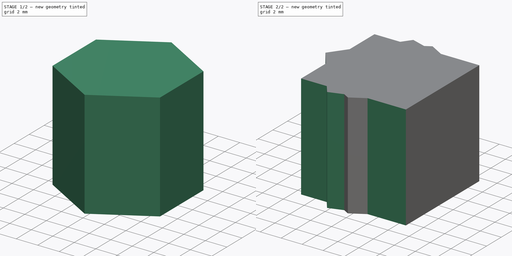
[diagram: build sequence overview — one tinted view per stage of 2, left to right]
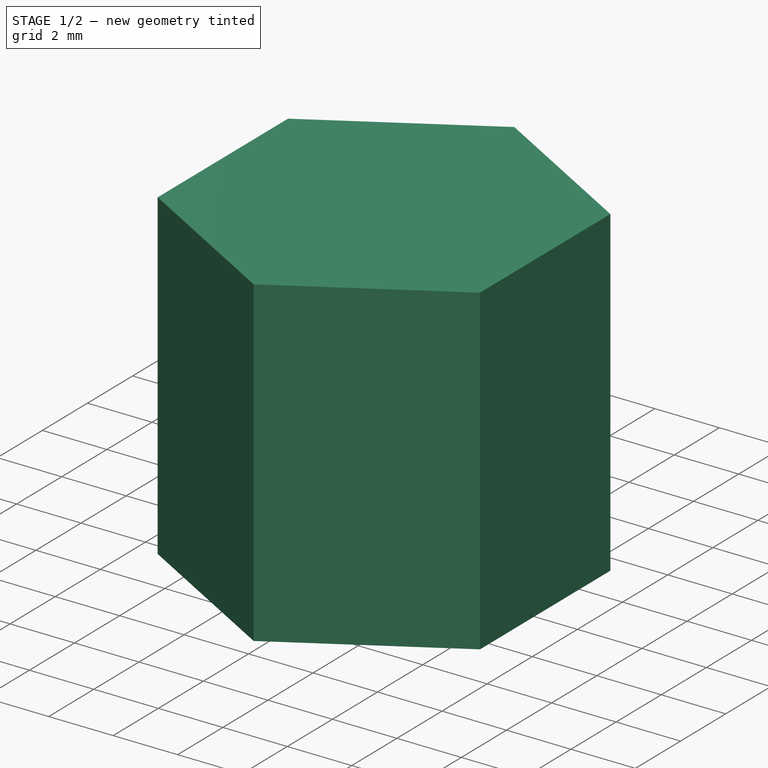
[diagram: stage 1 of 2 — iso view after this stage's code; geometry added in this stage tinted green]
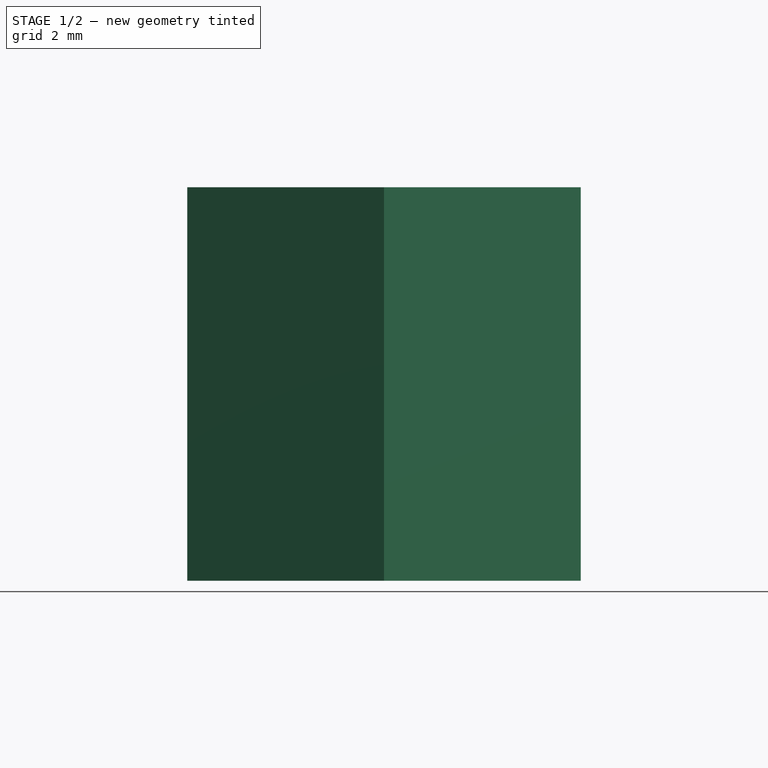
[diagram: stage 1 of 2 — front view after this stage's code; geometry added in this stage tinted green]
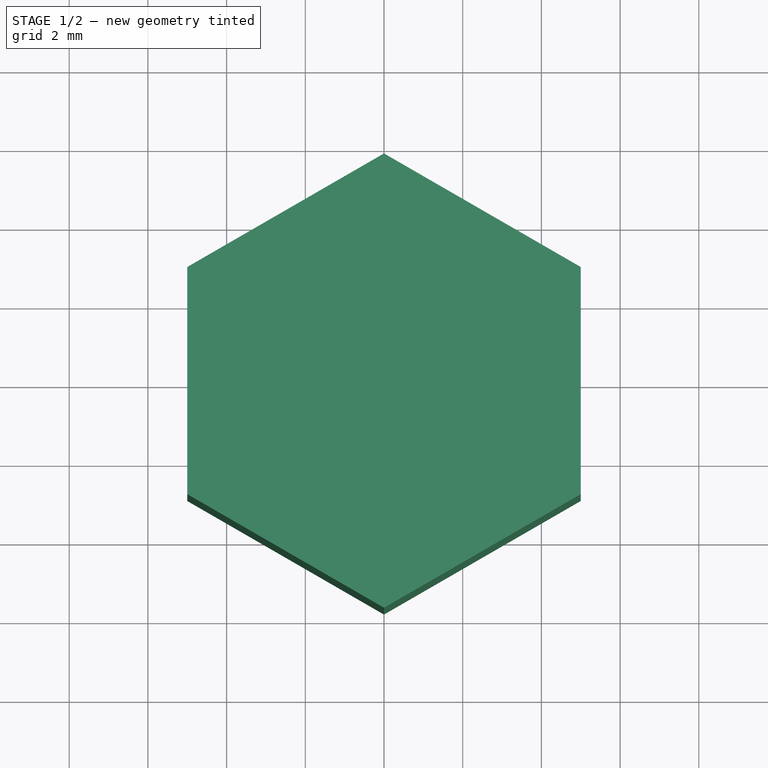
[diagram: stage 1 of 2 — top view after this stage's code; geometry added in this stage tinted green]
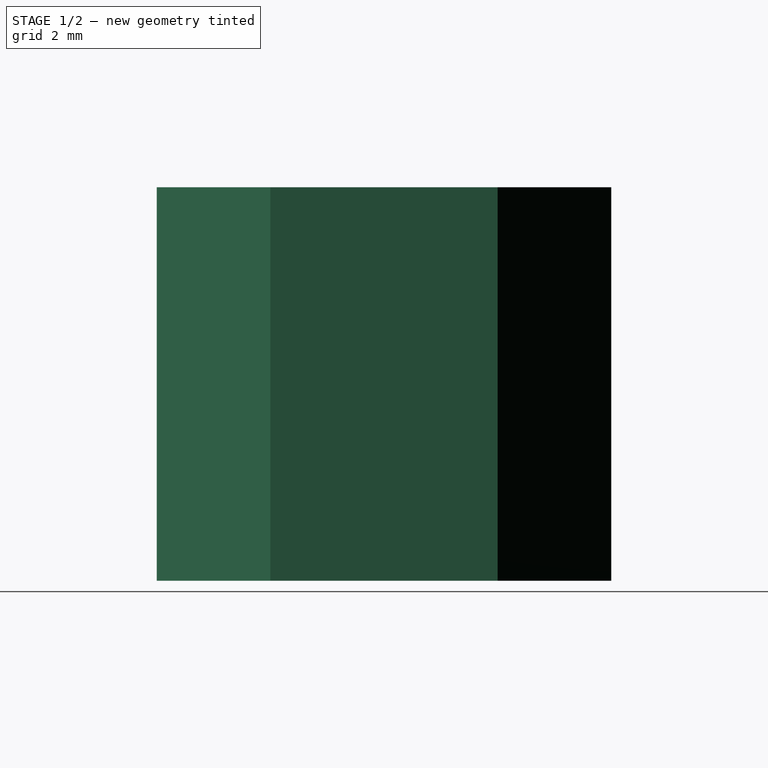
[diagram: stage 1 of 2 — right view after this stage's code; geometry added in this stage tinted green]
FCSTD DOCUMENT  (FreeCAD 0.19R17089 +1543 (Git))
Label: xchg-components-c
License: All rights reserved
LicenseURL: http://en.wikipedia.org/wiki/All_rights_reserved
objects: Part::FeaturePython×21, App::FeaturePython×15, Sketcher::SketchObject×4, PartDesign::Pad×4, PartDesign::Body×4, App::Link×3, App::DocumentObjectGroup×2
note: 34 computed .brp shape members not serialized (recipe doc carries the construction recipe); baked Part::Feature solids carry a one-line shape summary decoded from their .brp

FEATURE [App::DocumentObjectGroup] Group001  label="Project Components"
FEATURE [Sketcher::SketchObject] Sketch
  MapMode = 5
  Support = -> [XY_Plane]
  sketch-geometry (1):
    g0: Circle CenterX=0 CenterY=0 CenterZ=0 NormalX=0 NormalY=0 NormalZ=1 AngleXU=0 Radius=2.5
  constraints (2):
    c: Coincident(g0,g-1)
    c: Diameter(g0) = 5
FEATURE [PartDesign::Pad] Pad
  ClaimChildren = false
  Length = 10
  Length2 = 100
  Profile = -> Sketch
  Type = 0
FEATURE [PartDesign::Body] Body002  label="Pentagon 000"
  Group = -> [Sketch002,Pad002]
  Origin = -> Origin002
  Tip = -> Pad002
FEATURE [App::Link] Link001  label="Cylinder 002"
  LinkPlacement = pos=(-0.59017,0,10) rot=(0,0,1;0rad)
  LinkedObject = -> Body
  Placement = pos=(-0.59017,0,10) rot=(0,0,1;0rad)
FEATURE [Part::FeaturePython] Parts001  # WARN: FeaturePython — macro-defined, semantics opaque (R4)
  Group = -> [Link001,Body002]
  GroupMode = 0
FEATURE [Sketcher::SketchObject] Sketch003
  MapMode = 5
  Support = -> [XY_Plane003]
  sketch-geometry (7):
    g0: LineSegment StartX=0 StartY=5.7735 StartZ=0 EndX=-5 EndY=2.88675 EndZ=0
    g1: LineSegment StartX=-5 StartY=2.88675 StartZ=0 EndX=-5 EndY=-2.88675 EndZ=0
    g2: LineSegment StartX=-5 StartY=-2.88675 StartZ=0 EndX=0 EndY=-5.7735 EndZ=0
    g3: LineSegment StartX=0 StartY=-5.7735 StartZ=0 EndX=5 EndY=-2.88675 EndZ=0
    g4: LineSegment StartX=5 StartY=-2.88675 StartZ=0 EndX=5 EndY=2.88675 EndZ=0
    g5: LineSegment StartX=5 StartY=2.88675 StartZ=0 EndX=0 EndY=5.7735 EndZ=0
    g6: Circle [constr] CenterX=0 CenterY=0 CenterZ=0 NormalX=0 NormalY=0 NormalZ=1 AngleXU=0 Radius=5.7735
  constraints (16):
    c: Coincident(g0,g1)
    c: Coincident(g1,g2)
    c: Coincident(g2,g3)
    c: Coincident(g3,g4)
    c: Coincident(g4,g5)
    c: Coincident(g5,g0)
    c: Equal(g0, g1-g5) x5
    c: PointOnObject(g0,g6)
    c: PointOnObject(g1,g6)
    c: PointOnObject(g2,g6)
    c: PointOnObject(g3,g6)
    c: PointOnObject(g4,g6)
    c: PointOnObject(g5,g6)
    c: Coincident(g6,g-1)
    c: PointOnObject(g5,g-2)
    c: Distance(g1,g3) = 10
FEATURE [PartDesign::Pad] Pad003
  ClaimChildren = false
  Length = 10
  Length2 = 100
  Profile = -> Sketch003
  Type = 0
FEATURE [PartDesign::Body] Body003  label="Hexagon 000"
  Group = -> [Sketch003,Pad003]
  Origin = -> Origin003
  Tip = -> Pad003
FEATURE [App::Link] Link002  label="Cylinder 003"
  LinkPlacement = pos=(0,0,10) rot=(0,0,1;0rad)
  LinkedObject = -> Body
  Placement = pos=(0,0,10) rot=(0,0,1;0rad)
FEATURE [Part::FeaturePython] Parts002  # WARN: FeaturePython — macro-defined, semantics opaque (R4)
  Group = -> [Body003,Link002]
  GroupMode = 0
FEATURE [App::DocumentObjectGroup] Group  label="Component Definitions"
  Group = -> [Body,Assembly,Assembly001,Assembly002]
FEATURE [Part::FeaturePython] Assembly  label="Component A"  # WARN: FeaturePython — macro-defined, semantics opaque (R4)
  AutoRelax = true
  BuildShape = 0
  Freeze = false
  Group = -> [Constraints,Elements,Parts]
  GroupMode = 1
  SolverType = 1
  Verbose = false
  _SolverType = 1
  _Version = 1
FEATURE [App::FeaturePython] Constraints  # WARN: FeaturePython — macro-defined, semantics opaque (R4)
  Group = -> [Constraint]
  GroupMode = 1
  _Version = 1
FEATURE [App::FeaturePython] Elements  label="Connectors 000"  # WARN: FeaturePython — macro-defined, semantics opaque (R4)
  Group = -> [Element,Element001,Element002,Element003,Element004]
  GroupMode = 1
FEATURE [Part::FeaturePython] Element  label="Cylinder Top"  # link proxy (typed FeaturePython)
  Detach = false
  LinkTransform = true
  LinkedObject = -> Link [Pad.Edge3]
  _Parent = -> Elements
FEATURE [Part::FeaturePython] Element001  label="Cylinder Bottom"  # link proxy (typed FeaturePython)
  Detach = false
  LinkTransform = true
  LinkedObject = -> Link [Pad.Edge2]
  _Parent = -> Elements
FEATURE [Part::FeaturePython] Element002  label="Cube Top"  # link proxy (typed FeaturePython)
  Detach = false
  LinkTransform = true
  LinkedObject = -> Body001 [Pad001.Face6]
  _Parent = -> Elements
FEATURE [Part::FeaturePython] Element003  label="Right"  # link proxy (typed FeaturePython)
  Detach = false
  LinkTransform = true
  LinkedObject = -> Body001 [Pad001.Face4]
  _Parent = -> Elements
FEATURE [Part::FeaturePython] Element004  label="Bottom"  # link proxy (typed FeaturePython)
  Detach = false
  LinkTransform = true
  LinkedObject = -> Body001 [Pad001.Face5]
  _Parent = -> Elements
FEATURE [App::FeaturePython] Constraint  label="PlaneCoincident"  # WARN: FeaturePython — macro-defined, semantics opaque (R4)
  Angle = 0
  AnglePitch = 0
  AngleRoll = 0
  Cascade = false
  ConstraintType = 2
  Disabled = false
  Group = -> [ElementLink,ElementLink001]
  GroupMode = 1
  LockAngle = false
  Multiply = false
  OffsetX = 0
  OffsetY = 0
  _ConstraintType = 35
  _Parent = -> Constraints
FEATURE [App::FeaturePython] ElementLink  label="Cylinder Bottom"  # link proxy (typed FeaturePython)
  LinkTransform = true
  LinkedObject = -> Element001
  _Parent = -> Constraint
FEATURE [App::FeaturePython] ElementLink001  label="Cube Top"  # link proxy (typed FeaturePython)
  LinkTransform = true
  LinkedObject = -> Element002
  _Parent = -> Constraint
FEATURE [Part::FeaturePython] Assembly001  label="Component B"  # WARN: FeaturePython — macro-defined, semantics opaque (R4)
  AutoRelax = true
  BuildShape = 0
  Freeze = false
  Group = -> [Constraints001,Elements001,Parts001]
  GroupMode = 1
  SolverType = 1
  Verbose = false
  _SolverType = 1
  _Version = 1
FEATURE [App::FeaturePython] Constraints001  # WARN: FeaturePython — macro-defined, semantics opaque (R4)
  Group = -> [Constraint001]
  GroupMode = 1
  _Version = 1
FEATURE [App::FeaturePython] Elements001  label="Connectors 001"  # WARN: FeaturePython — macro-defined, semantics opaque (R4)
  Group = -> [Element005,Element006,Element007,Element008,Element009]
  GroupMode = 1
FEATURE [Part::FeaturePython] Element005  label="Cylinder Top"  # link proxy (typed FeaturePython)
  Detach = false
  LinkTransform = true
  LinkedObject = -> Link001 [Pad.Edge3]
  _Parent = -> Elements001
FEATURE [Part::FeaturePython] Element006  label="Cylinder Bottom"  # link proxy (typed FeaturePython)
  Detach = false
  LinkTransform = true
  LinkedObject = -> Link001 [Pad.Edge2]
  _Parent = -> Elements001
FEATURE [Part::FeaturePython] Element007  label="Pentagon Top"  # link proxy (typed FeaturePython)
  Detach = false
  LinkTransform = true
  LinkedObject = -> Body002 [Pad002.Face7]
  _Parent = -> Elements001
FEATURE [Part::FeaturePython] Element008  label="Right"  # link proxy (typed FeaturePython)
  Detach = false
  LinkTransform = true
  LinkedObject = -> Body002 [Pad002.Face3]
  _Parent = -> Elements001
FEATURE [Part::FeaturePython] Element009  label="Bottom"  # link proxy (typed FeaturePython)
  Detach = false
  LinkTransform = true
  LinkedObject = -> Body002 [Pad002.Face6]
  _Parent = -> Elements001
FEATURE [App::FeaturePython] Constraint001  label="PlaneCoincident001"  # WARN: FeaturePython — macro-defined, semantics opaque (R4)
  Angle = 0
  AnglePitch = 0
  AngleRoll = 0
  Cascade = false
  ConstraintType = 2
  Disabled = false
  Group = -> [ElementLink002,ElementLink003]
  GroupMode = 1
  LockAngle = false
  Multiply = false
  OffsetX = 0
  OffsetY = 0
  _ConstraintType = 35
  _Parent = -> Constraints001
FEATURE [App::FeaturePython] ElementLink002  label="Pentagon Top"  # link proxy (typed FeaturePython)
  LinkTransform = true
  LinkedObject = -> Element007
  _Parent = -> Constraint001
FEATURE [App::FeaturePython] ElementLink003  label="Cylinder Bottom"  # link proxy (typed FeaturePython)
  LinkTransform = true
  LinkedObject = -> Element006
  _Parent = -> Constraint001
FEATURE [Part::FeaturePython] Assembly002  label="Component C"  # WARN: FeaturePython — macro-defined, semantics opaque (R4)
  AutoRelax = true
  BuildShape = 0
  Freeze = false
  Group = -> [Constraints002,Elements002,Parts002]
  GroupMode = 1
  SolverType = 1
  Verbose = false
  _SolverType = 1
  _Version = 1
FEATURE [App::FeaturePython] Constraints002  # WARN: FeaturePython — macro-defined, semantics opaque (R4)
  Group = -> [Constraint002]
  GroupMode = 1
  _Version = 1
FEATURE [App::FeaturePython] Elements002  label="Connectors 002"  # WARN: FeaturePython — macro-defined, semantics opaque (R4)
  Group = -> [Element010,Element011,Element012,Element013,Element014]
  GroupMode = 1
FEATURE [Part::FeaturePython] Element010  label="Cylinder Top"  # link proxy (typed FeaturePython)
  Detach = false
  LinkTransform = true
  LinkedObject = -> Link002 [Pad.Edge3]
  _Parent = -> Elements002
FEATURE [Part::FeaturePython] Element011  label="Cylinder Bottom"  # link proxy (typed FeaturePython)
  Detach = false
  LinkTransform = true
  LinkedObject = -> Link002 [Pad.Edge2]
  _Parent = -> Elements002
FEATURE [Part::FeaturePython] Element012  label="Hexagon Top"  # link proxy (typed FeaturePython)
  Detach = false
  LinkTransform = true
  LinkedObject = -> Body003 [Pad003.Face8]
  _Parent = -> Elements002
FEATURE [Part::FeaturePython] Element013  label="Right"  # link proxy (typed FeaturePython)
  Detach = false
  LinkTransform = true
  LinkedObject = -> Body003 [Pad003.Face5]
  _Parent = -> Elements002
FEATURE [Part::FeaturePython] Element014  label="Bottom"  # link proxy (typed FeaturePython)
  Detach = false
  LinkTransform = true
  LinkedObject = -> Body003 [Pad003.Face7]
  _Parent = -> Elements002
FEATURE [App::FeaturePython] Constraint002  label="PlaneCoincident002"  # WARN: FeaturePython — macro-defined, semantics opaque (R4)
  Angle = 0
  AnglePitch = 0
  AngleRoll = 0
  Cascade = false
  ConstraintType = 2
  Disabled = false
  Group = -> [ElementLink004,ElementLink005]
  GroupMode = 1
  LockAngle = false
  Multiply = false
  OffsetX = 0
  OffsetY = 0
  _ConstraintType = 35
  _Parent = -> Constraints002
FEATURE [App::FeaturePython] ElementLink004  label="Hexagon Top"  # link proxy (typed FeaturePython)
  LinkTransform = true
  LinkedObject = -> Element012
  _Parent = -> Constraint002
FEATURE [App::FeaturePython] ElementLink005  label="Cylinder Bottom"  # link proxy (typed FeaturePython)
  LinkTransform = true
  LinkedObject = -> Element011
  _Parent = -> Constraint002
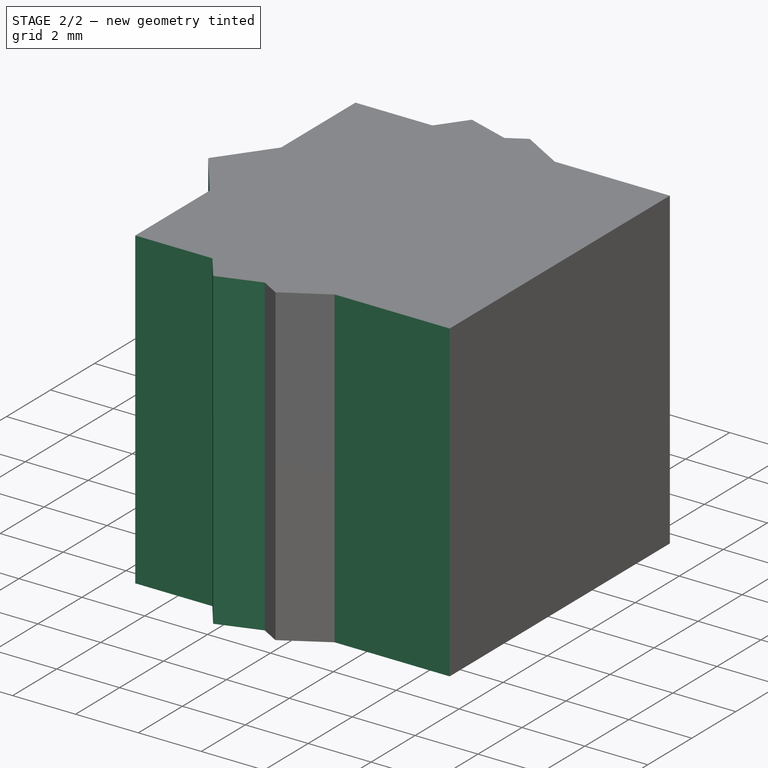
[diagram: stage 2 of 2 — iso view after this stage's code; geometry added in this stage tinted green]
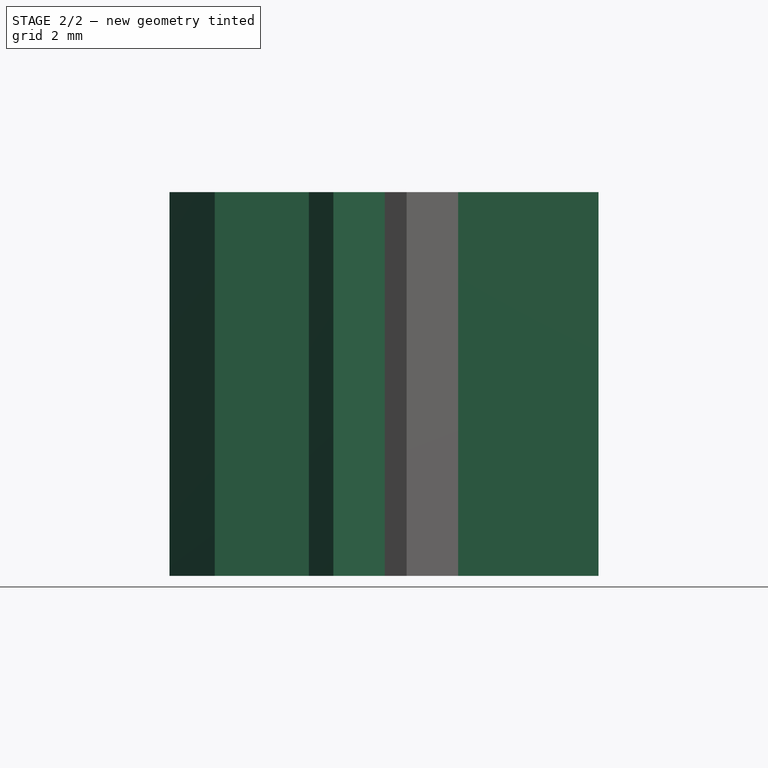
[diagram: stage 2 of 2 — front view after this stage's code; geometry added in this stage tinted green]
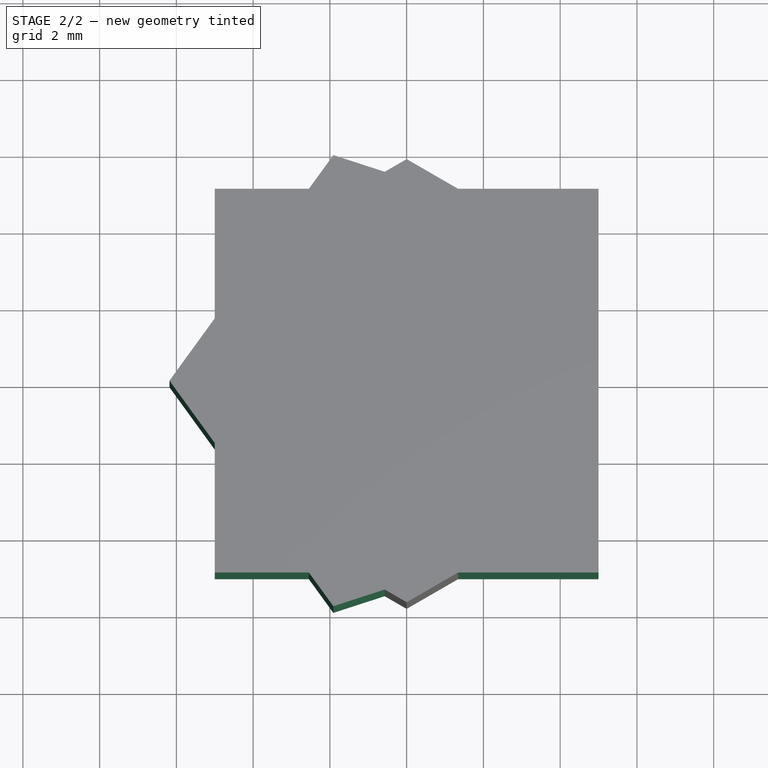
[diagram: stage 2 of 2 — top view after this stage's code; geometry added in this stage tinted green]
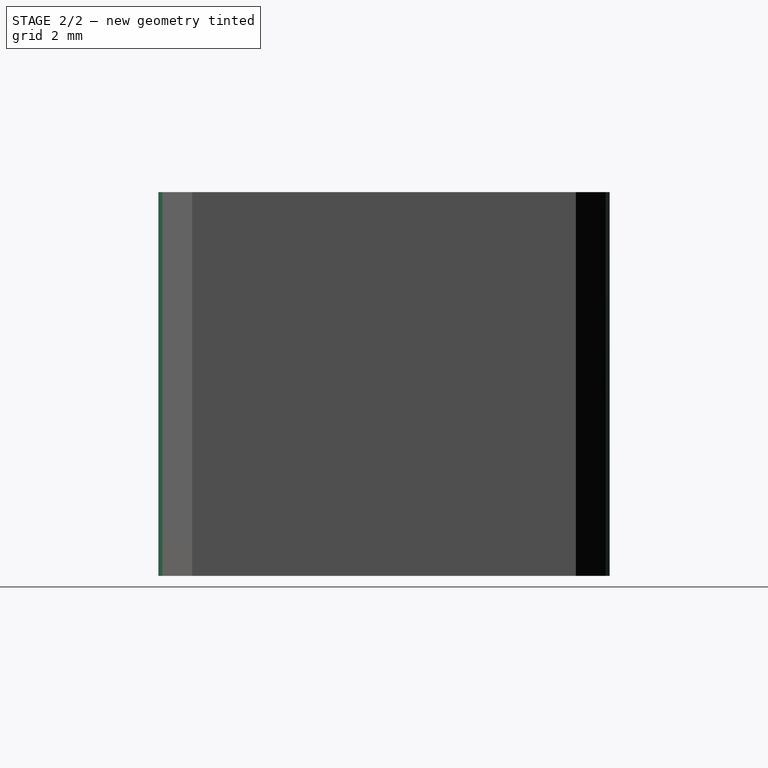
[diagram: stage 2 of 2 — right view after this stage's code; geometry added in this stage tinted green]
FEATURE [PartDesign::Body] Body  label="Cylinder 000"
  Group = -> [Sketch,Pad]
  Origin = -> Origin
  Tip = -> Pad
FEATURE [Sketcher::SketchObject] Sketch001
  MapMode = 5
  Support = -> [XY_Plane001]
  sketch-geometry (5):
    g0: LineSegment StartX=5 StartY=5 StartZ=0 EndX=-5 EndY=5 EndZ=0
    g1: LineSegment StartX=-5 StartY=5 StartZ=0 EndX=-5 EndY=-5 EndZ=0
    g2: LineSegment StartX=-5 StartY=-5 StartZ=0 EndX=5 EndY=-5 EndZ=0
    g3: LineSegment StartX=5 StartY=-5 StartZ=0 EndX=5 EndY=5 EndZ=0
    g4: Circle [constr] CenterX=0 CenterY=0 CenterZ=0 NormalX=0 NormalY=0 NormalZ=1 AngleXU=0 Radius=7.07107
  constraints (14):
    c: Coincident(g0,g1)
    c: Coincident(g1,g2)
    c: Coincident(g2,g3)
    c: Coincident(g3,g0)
    c: Equal(g0,g1)
    c: Equal(g0,g2)
    c: Equal(g0,g3)
    c: PointOnObject(g0,g4)
    c: PointOnObject(g1,g4)
    c: PointOnObject(g2,g4)
    c: PointOnObject(g3,g4)
    c: Coincident(g4,g-1)
    c: Horizontal(g0)
    c: Distance(g2) = 10
FEATURE [PartDesign::Pad] Pad001
  ClaimChildren = false
  Length = 10
  Length2 = 100
  Profile = -> Sketch001
  Type = 0
FEATURE [PartDesign::Body] Body001  label="Cube 000"
  Group = -> [Sketch001,Pad001]
  Origin = -> Origin001
  Placement = pos=(0,0,-10) rot=(0,0,1;0rad)
  Tip = -> Pad001
FEATURE [App::Link] Link  label="Cylinder 001"
  LinkedObject = -> Body
FEATURE [Part::FeaturePython] Parts  # WARN: FeaturePython — macro-defined, semantics opaque (R4)
  Group = -> [Body001,Link]
  GroupMode = 0
FEATURE [Sketcher::SketchObject] Sketch002
  MapMode = 5
  Support = -> [XY_Plane002]
  sketch-geometry (6):
    g0: LineSegment StartX=-6.18034 StartY=0 StartZ=0 EndX=-1.90983 EndY=-5.87785 EndZ=0
    g1: LineSegment StartX=-1.90983 StartY=-5.87785 StartZ=0 EndX=5 EndY=-3.63271 EndZ=0
    g2: LineSegment StartX=5 StartY=-3.63271 StartZ=0 EndX=5 EndY=3.63271 EndZ=0
    g3: LineSegment StartX=5 StartY=3.63271 StartZ=0 EndX=-1.90983 EndY=5.87785 EndZ=0
    g4: LineSegment StartX=-1.90983 StartY=5.87785 StartZ=0 EndX=-6.18034 EndY=0 EndZ=0
    g5: Circle [constr] CenterX=0 CenterY=0 CenterZ=0 NormalX=0 NormalY=0 NormalZ=1 AngleXU=0 Radius=6.18034
  constraints (14):
    c: Coincident(g0,g1)
    c: Coincident(g1,g2)
    c: Coincident(g2,g3)
    c: Coincident(g3,g4)
    c: Coincident(g4,g0)
    c: Equal(g0, g1-g4) x4
    c: PointOnObject(g0,g5)
    c: PointOnObject(g1,g5)
    c: PointOnObject(g2,g5)
    c: PointOnObject(g3,g5)
    c: PointOnObject(g4,g5)
    c: Coincident(g5,g-1)
    c: PointOnObject(g4,g-1)
    c: DistanceX(g-1,g1) = 5
FEATURE [PartDesign::Pad] Pad002
  ClaimChildren = false
  Length = 10
  Length2 = 100
  Profile = -> Sketch002
  Type = 0
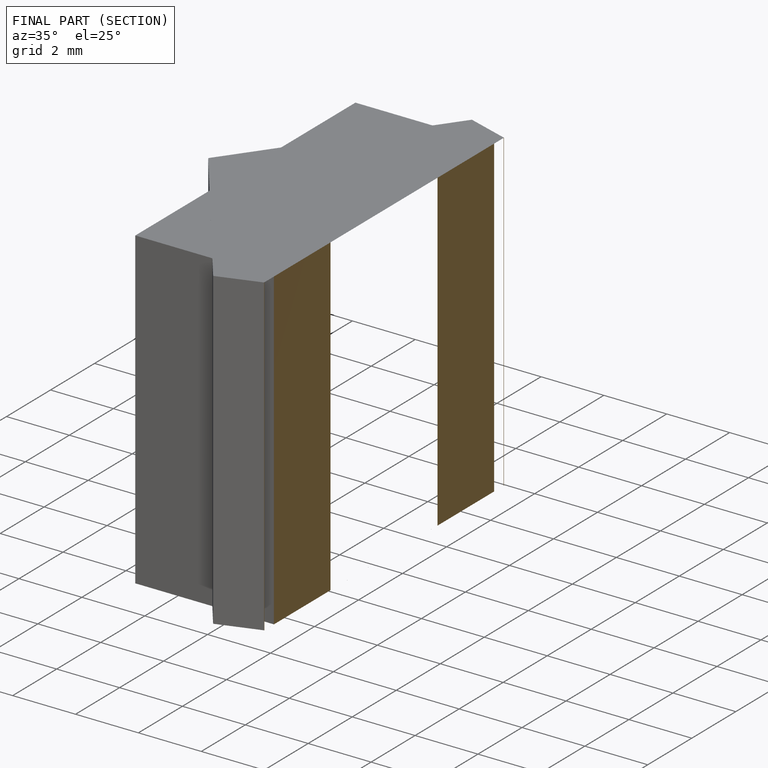
[diagram: finished part — half-section view (interior)]
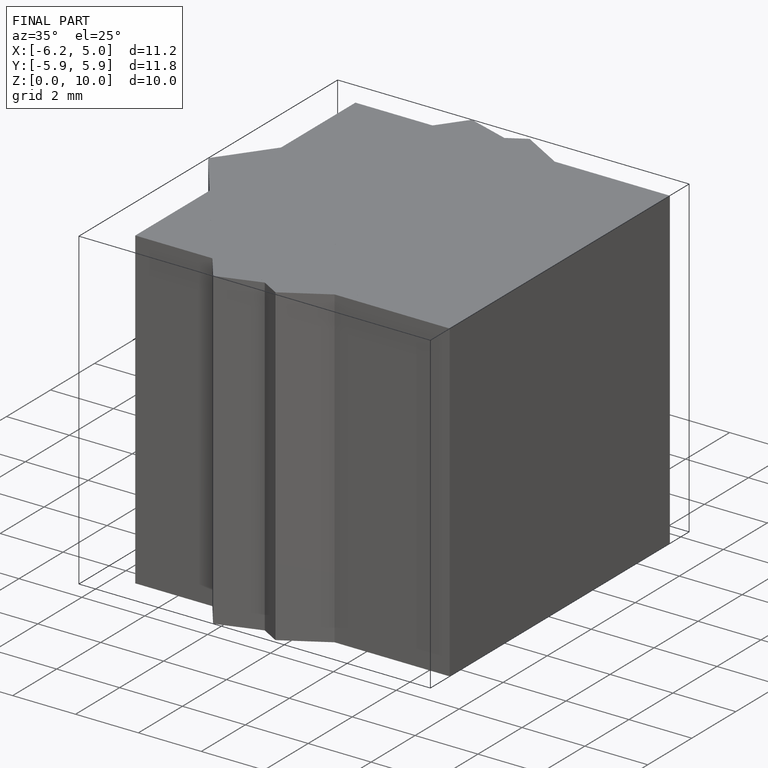
[diagram: finished part — iso view with bounding-box wireframe]
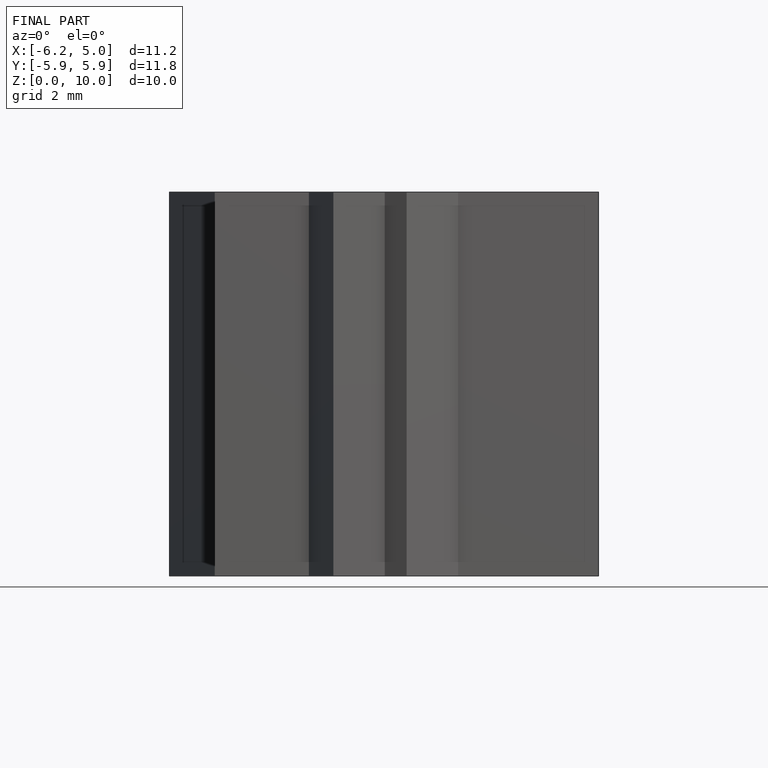
[diagram: finished part — front view with bounding-box wireframe]
